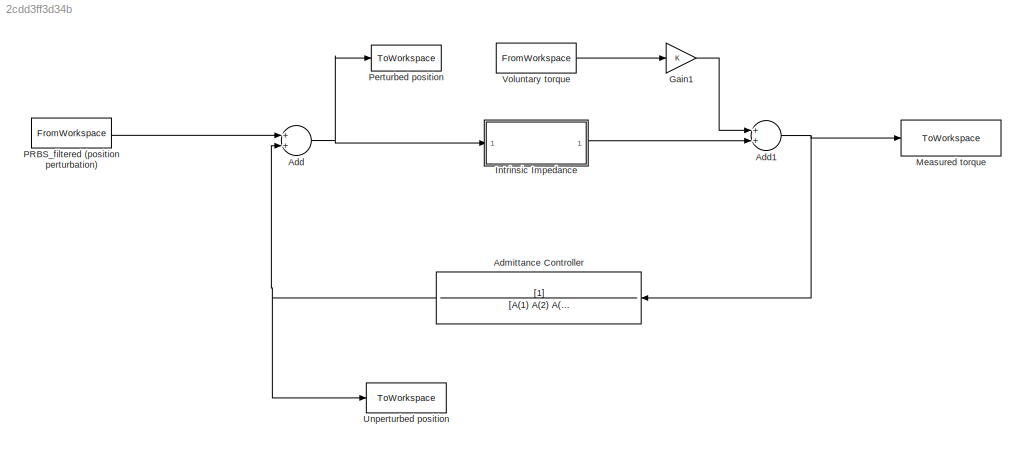
MODEL slx_2cdd3ff3d34b
KIND model
CONFIG AbsTol = auto
CONFIG EnableMultiTasking = off
CONFIG FixedStep = auto
CONFIG MaxStep = auto
CONFIG MinStep = auto
CONFIG RelTol = 1e-3
CONFIG SampleTimeConstraint = Unconstrained
CONFIG Solver = VariableStepAuto
CONFIG SolverName = VariableStepAuto
CONFIG StartTime = 0.0
CONFIG StopTime = Tmax
BLOCK [Sum] Add
  InputSameDT = off
  OutDataTypeStr = Inherit: Inherit via internal rule
  Ports = [2, 1]
  SaturateOnIntegerOverflow = off
BLOCK [Sum] Add1
  InputSameDT = off
  OutDataTypeStr = Inherit: Inherit via internal rule
  Ports = [2, 1]
  SaturateOnIntegerOverflow = off
BLOCK [TransferFcn] Admittance Controller
  Denominator = [A(1) A(2) A(3)]
BLOCK [Gain] Gain1
  OutDataTypeStr = Inherit: Inherit via internal rule
  ParamDataTypeStr = Inherit: Inherit via internal rule
  SaturateOnIntegerOverflow = off
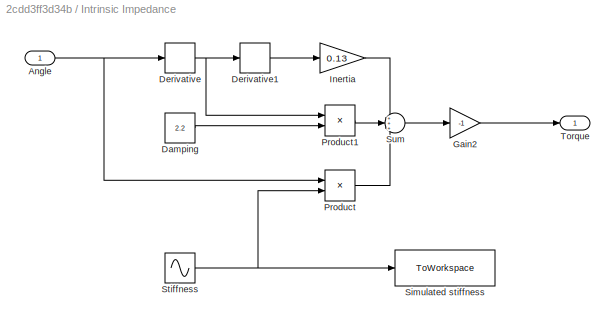
BLOCK [SubSystem] Intrinsic Impedance 
  Ports = [1, 1]
  RequestExecContextInheritance = off
  Variant = off
BLOCK [Inport] Intrinsic Impedance /Angle
  IconDisplay = Port number
  SampleTime = 1/fs
BLOCK [Constant] Intrinsic Impedance /Damping
  SampleTime = 1/fs
  Value = 2.2
BLOCK [Derivative] Intrinsic Impedance /Derivative
BLOCK [Derivative] Intrinsic Impedance /Derivative1
BLOCK [Gain] Intrinsic Impedance /Gain2
  Gain = -1
  OutDataTypeStr = Inherit: Inherit via internal rule
  ParamDataTypeStr = Inherit: Inherit via internal rule
  SaturateOnIntegerOverflow = off
BLOCK [Gain] Intrinsic Impedance /Inertia 
  Gain = 0.13
  OutDataTypeStr = Inherit: Inherit via internal rule
  ParamDataTypeStr = Inherit: Inherit via internal rule
  SaturateOnIntegerOverflow = off
BLOCK [Product] Intrinsic Impedance /Product
  InputSameDT = off
  OutDataTypeStr = Inherit: Inherit via internal rule
  Ports = [2, 1]
  SaturateOnIntegerOverflow = off
BLOCK [Product] Intrinsic Impedance /Product1
  InputSameDT = off
  OutDataTypeStr = Inherit: Inherit via internal rule
  Ports = [2, 1]
  SaturateOnIntegerOverflow = off
BLOCK [ToWorkspace] Intrinsic Impedance /Simulated stiffness
  FixptAsFi = on
  MaxDataPoints = inf
  Ports = [1]
  SampleTime = 1/fs
  Save2DSignal = 3-D array (concatenate along third dimension)
  SaveFormat = Timeseries
  VariableName = sim_stiffness
BLOCK [Sin] Intrinsic Impedance /Stiffness
  Amplitude = 10
  Bias = 30
  Frequency = 2*pi*0.5
  Ports = [0, 1]
  SampleTime = 1/fs
BLOCK [Sum] Intrinsic Impedance /Sum
  IconShape = round
  InputSameDT = off
  Inputs = +++
  OutDataTypeStr = Inherit: Inherit via internal rule
  Ports = [3, 1]
  SaturateOnIntegerOverflow = off
BLOCK [Outport] Intrinsic Impedance /Torque
  IconDisplay = Port number
  SampleTime = 1/fs
BLOCK [ToWorkspace] Measured torque
  FixptAsFi = on
  MaxDataPoints = inf
  Ports = [1]
  SampleTime = -1
  Save2DSignal = 3-D array (concatenate along third dimension)
  SaveFormat = Timeseries
  VariableName = Output_AC
BLOCK [FromWorkspace] PRBS_filtered (position perturbation)
  SampleTime = 1/fs
  VariableName = PRBS_TS
  ZeroCross = on
BLOCK [ToWorkspace] Perturbed position
  FixptAsFi = on
  MaxDataPoints = inf
  Ports = [1]
  SampleTime = 1/fs
  Save2DSignal = 3-D array (concatenate along third dimension)
  SaveFormat = Timeseries
  VariableName = pos_pert
BLOCK [ToWorkspace] Unperturbed position
  FixptAsFi = on
  MaxDataPoints = inf
  Ports = [1]
  SampleTime = 1/fs
  Save2DSignal = 3-D array (concatenate along third dimension)
  SaveFormat = Timeseries
  VariableName = pos_noPert
BLOCK [FromWorkspace] Voluntary torque
  SampleTime = 1/fs
  VariableName = torque_TS
  ZeroCross = on
NET Add1:1 -> Admittance Controller:1, Measured torque:1
NET Add:1 -> Intrinsic Impedance :1, Perturbed position:1
NET Admittance Controller:1 -> Add:2, Unperturbed position:1
LINE Gain1:1 -> Add1:1
NET Intrinsic Impedance /Angle:1 -> Intrinsic Impedance /Derivative:1, Intrinsic Impedance /Product:1
LINE Intrinsic Impedance /Damping:1 -> Intrinsic Impedance /Product1:2
LINE Intrinsic Impedance /Derivative1:1 -> Intrinsic Impedance /Inertia :1
NET Intrinsic Impedance /Derivative:1 -> Intrinsic Impedance /Derivative1:1, Intrinsic Impedance /Product1:1
LINE Intrinsic Impedance /Gain2:1 -> Intrinsic Impedance /Torque:1
LINE Intrinsic Impedance /Inertia :1 -> Intrinsic Impedance /Sum:1
LINE Intrinsic Impedance /Product1:1 -> Intrinsic Impedance /Sum:2
LINE Intrinsic Impedance /Product:1 -> Intrinsic Impedance /Sum:3
NET Intrinsic Impedance /Stiffness:1 -> Intrinsic Impedance /Product:2, Intrinsic Impedance /Simulated stiffness:1
LINE Intrinsic Impedance /Sum:1 -> Intrinsic Impedance /Gain2:1
LINE Intrinsic Impedance :1 -> Add1:2
LINE PRBS_filtered (position perturbation):1 -> Add:1
LINE Voluntary torque:1 -> Gain1:1
note: NET lines group one-source signal fan-out (src -> all destinations, sorted); 1:1 wires keep LINE
